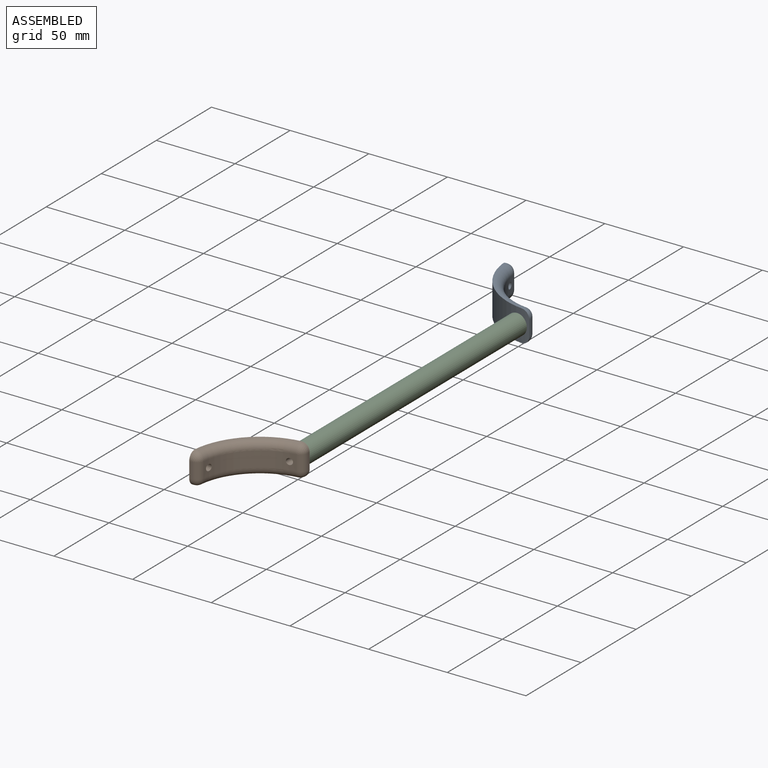
[diagram: assembled view]
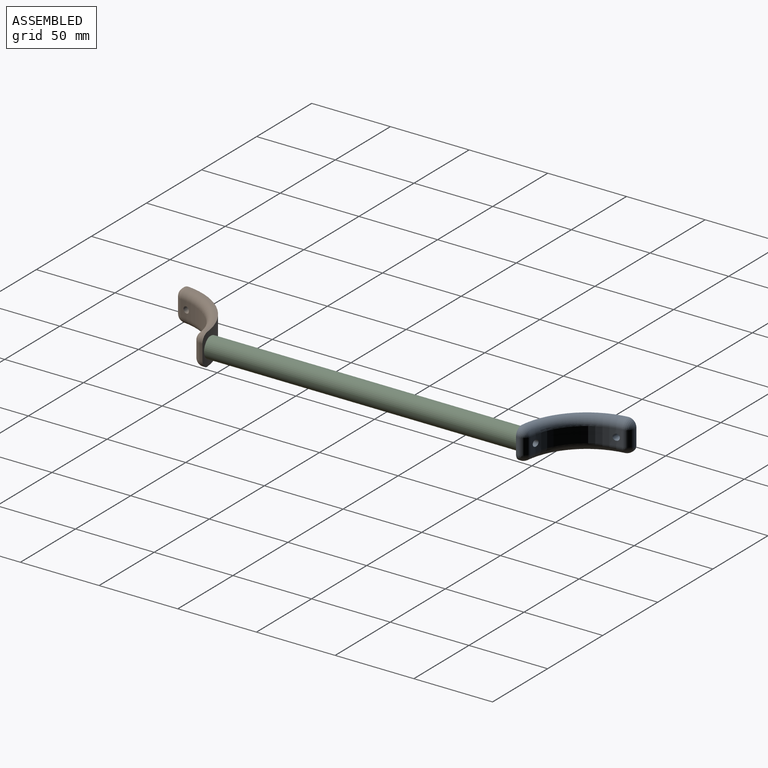
[diagram: assembled view, second angle]
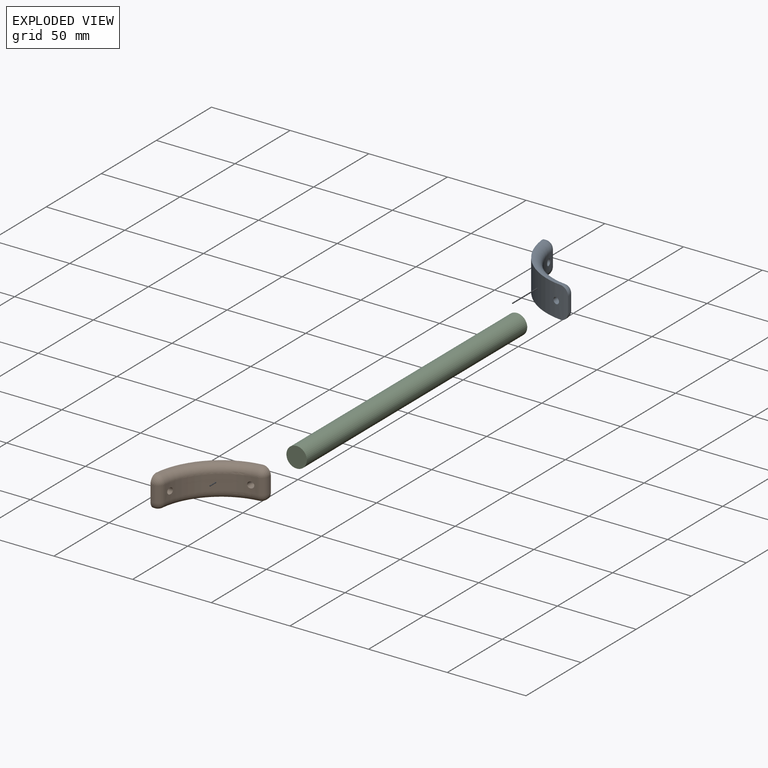
[diagram: exploded view]
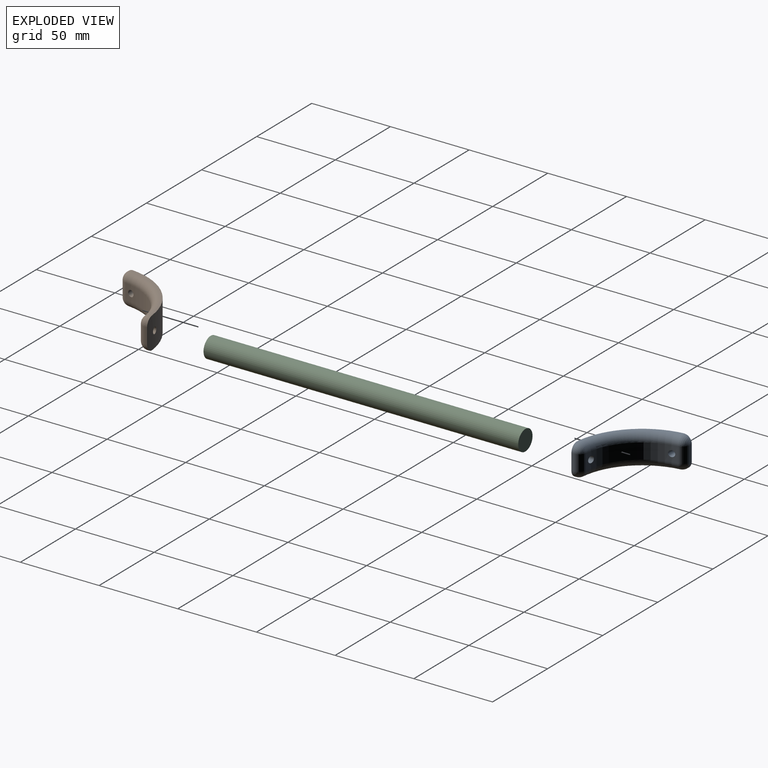
[diagram: exploded view, second angle]
ASSEMBLY  parts=3 mates=2
PART A: 20 faces, bbox 51.1x51.1x20 mm
  f0: plane 10x1.29mm, normal (1,0,0), area 12.9mm2, adj f1,f10,f12,f14
  f1: cylinder r=45mm len=45mm, axis (0,0,1), area 1366.7mm2, adj f0,f2,f4,f5,f6,f7,f10,f14
  f2: plane 10x1.29mm, normal (0,-1,0), area 12.9mm2, adj f1,f15,f17,f19
  f3: cylinder r=39mm len=34.32mm, axis (0,0,1), area 498.1mm2, adj f6,f7,f8,f9,f12,f17
  f4: plane 39.72x39.72mm, normal (0,0,-1), area 59.9mm2, adj f1,f8,f14,f19
  f5: plane 39.72x39.72mm, normal (0,0,1), area 59.9mm2, adj f1,f9,f10,f15
  f6: cylinder r=2mm len=6.9mm, axis (0,-1,0), area 76.9mm2, adj f1,f3
  f7: cylinder r=2mm len=6.9mm, axis (1,0,0), area 76.9mm2, adj f1,f3
  f8: torus R=44mm, axis (0,0,1), area 430.5mm2, adj f3,f4,f13,f18
  f9: torus R=44mm, axis (0,0,1), area 430.5mm2, adj f3,f5,f11,f16
  f10: cylinder r=5mm len=5mm, axis (0,1,0), area 9.6mm2, adj f0,f1,f5,f11
  f11: sphere r=5mm, area 36.4mm2, adj f9,f10,f12
  f12: cylinder r=5mm len=10mm, axis (0,0,1), area 72.8mm2, adj f0,f3,f11,f13
  f13: sphere r=5mm, area 36.4mm2, adj f8,f12,f14
  f14: cylinder r=5mm len=5mm, axis (0,-1,0), area 9.6mm2, adj f0,f1,f4,f13
  f15: cylinder r=5mm len=5mm, axis (1,0,0), area 9.6mm2, adj f1,f2,f5,f16
  f16: sphere r=5mm, area 36.4mm2, adj f9,f15,f17
  f17: cylinder r=5mm len=10mm, axis (0,0,1), area 72.8mm2, adj f2,f3,f16,f18
  f18: sphere r=5mm, area 36.4mm2, adj f8,f17,f19
  f19: cylinder r=5mm len=5mm, axis (-1,0,0), area 9.6mm2, adj f1,f2,f4,f18
PART B: same geometry as A
PART C: 3 faces, bbox 13x200x13 mm
  f0: cylinder r=6.5mm len=200mm, axis (0,1,0), area 8168.1mm2, adj f1,f2
  f1: plane 13x13mm, normal (0,-1,0), area 132.7mm2, adj f0
  f2: plane 13x13mm, normal (0,1,0), area 132.7mm2, adj f0
PLACE A rot(axis=(-1,0,0),180deg) t=(-90.57,141.5,-35.07)mm
PLACE B t=(-90.57,-147.78,-15.07)mm
PLACE C rot(axis=(0,-1,0),180deg) t=(-157.75,96.86,28.85)mm
MATE fastened B.f6 <-> C.f0  axis (0,-1,0) through (-98.57,-103.14,-25.07)mm
MATE fastened A.f6 <-> C.f0  axis (0,1,0) through (-98.57,96.86,-25.07)mm
